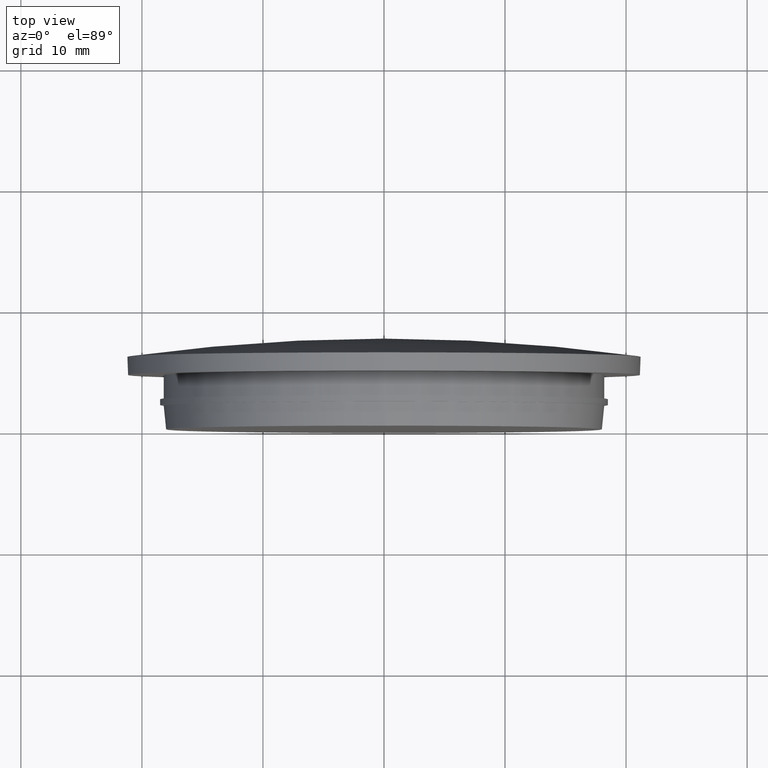
[diagram: clean part render]
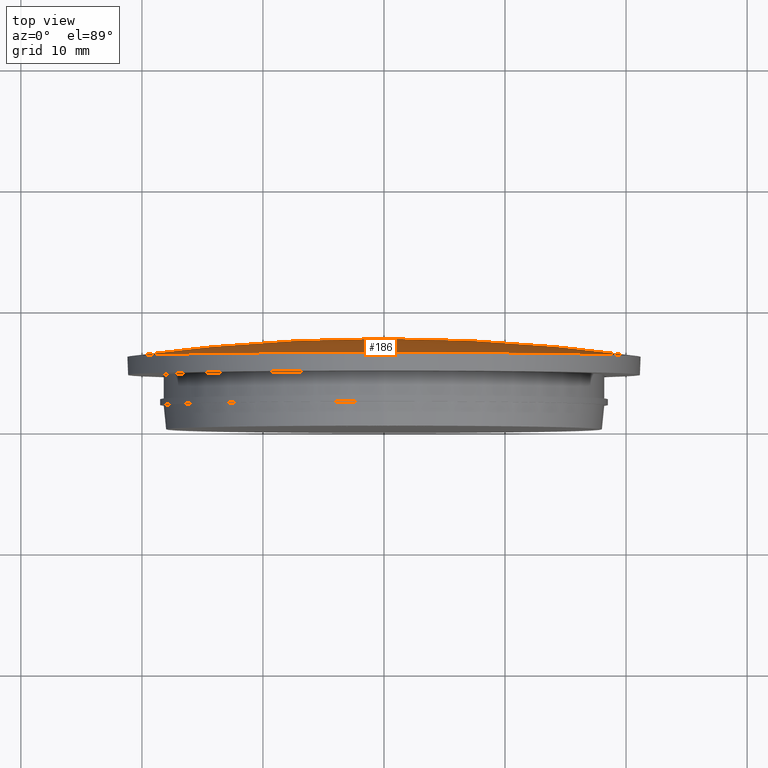
[diagram: same view with one face highlighted and labeled with its STEP entity id]
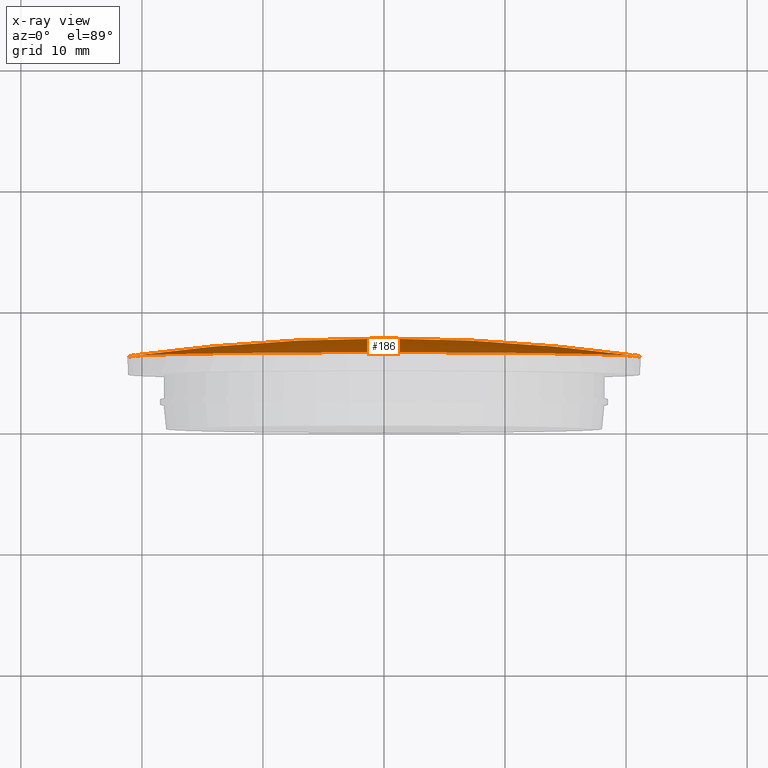
[diagram: x-ray of the same camera — body ghosted, the highlighted face saturated]
A machine part, top view. The second image highlights one B-rep face of the part: STEP entity #186.
The next image is the same camera in x-ray: the body ghosted, the highlighted face saturated — about 0% of this face is hidden behind the body in this view.
In plain terms, the highlighted spherical surface has radius 150.563 mm.
Its self-contained STEP definition (entity closure, byte-faithful):
#186 = ADVANCED_FACE ( 'NONE', ( #9814 ), #11570, .T. ) ;
#716 = CARTESIAN_POINT ( 'NONE',  ( 0.0000000000000000000, -143.0633333333346400, 0.0000000000000000000 ) ) ;
#943 = DIRECTION ( 'NONE',  ( -0.0000000000000000000, 1.000000000000000000, -0.0000000000000000000 ) ) ;
#1498 = EDGE_CURVE ( 'NONE', #2466, #5381, #4298, .T. ) ;
#2466 = VERTEX_POINT ( 'NONE', #13152 ) ;
#2713 = DIRECTION ( 'NONE',  ( -0.0000000000000000000, 1.000000000000000000, -0.0000000000000000000 ) ) ;
#3174 = CARTESIAN_POINT ( 'NONE',  ( 0.0000000000000000000, -143.0633333333346400, 0.0000000000000000000 ) ) ;
#3320 = AXIS2_PLACEMENT_3D ( 'NONE', #5608, #7617, #5509 ) ;
#3871 = CIRCLE ( 'NONE', #10192, 21.19999999999999900 ) ;
#4298 = CIRCLE ( 'NONE', #7902, 150.5633333333346700 ) ;
#4371 = ORIENTED_EDGE ( 'NONE', *, *, #12433, .T. ) ;
#4945 = DIRECTION ( 'NONE',  ( 0.0000000000000000000, 0.0000000000000000000, 1.000000000000000000 ) ) ;
#5074 = DIRECTION ( 'NONE',  ( 1.000000000000000000, 0.0000000000000000000, 0.0000000000000000000 ) ) ;
#5239 = AXIS2_PLACEMENT_3D ( 'NONE', #11982, #2713, #12892 ) ;
#5381 = VERTEX_POINT ( 'NONE', #8735 ) ;
#5509 = DIRECTION ( 'NONE',  ( 1.000000000000000000, 0.0000000000000000000, 0.0000000000000000000 ) ) ;
#5608 = CARTESIAN_POINT ( 'NONE',  ( 0.0000000000000000000, -143.0633333333346400, 0.0000000000000000000 ) ) ;
#5716 = VERTEX_POINT ( 'NONE', #9496 ) ;
#6149 = CARTESIAN_POINT ( 'NONE',  ( 0.0000000000000000000, 6.000000000000003600, 0.0000000000000000000 ) ) ;
#7135 = DIRECTION ( 'NONE',  ( 0.0000000000000000000, 0.0000000000000000000, 1.000000000000000000 ) ) ;
#7351 = CARTESIAN_POINT ( 'NONE',  ( 0.0000000000000000000, 6.000000000000003600, 21.19999999999999900 ) ) ;
#7367 = EDGE_CURVE ( 'NONE', #10778, #5716, #3871, .T. ) ;
#7617 = DIRECTION ( 'NONE',  ( 0.0000000000000000000, 0.0000000000000000000, -1.000000000000000000 ) ) ;
#7823 = CIRCLE ( 'NONE', #12380, 150.5633333333346700 ) ;
#7856 = DIRECTION ( 'NONE',  ( -1.000000000000000000, 0.0000000000000000000, -1.224646799147353000E-016 ) ) ;
#7884 = CIRCLE ( 'NONE', #5239, 21.19999999999999900 ) ;
#7902 = AXIS2_PLACEMENT_3D ( 'NONE', #716, #8785, #7856 ) ;
#8447 = EDGE_CURVE ( 'NONE', #5716, #5381, #7823, .T. ) ;
#8735 = CARTESIAN_POINT ( 'NONE',  ( 9.219345211781213500E-015, 7.500000000000007100, 0.0000000000000000000 ) ) ;
#8785 = DIRECTION ( 'NONE',  ( 1.224646799147353200E-016, 0.0000000000000000000, -1.000000000000000000 ) ) ;
#9496 = CARTESIAN_POINT ( 'NONE',  ( 21.20000000000003100, 6.000000000000004400, 0.0000000000000000000 ) ) ;
#9814 = FACE_OUTER_BOUND ( 'NONE', #13183, .T. ) ;
#10192 = AXIS2_PLACEMENT_3D ( 'NONE', #6149, #943, #4945 ) ;
#10778 = VERTEX_POINT ( 'NONE', #7351 ) ;
#11513 = ORIENTED_EDGE ( 'NONE', *, *, #1498, .F. ) ;
#11570 = SPHERICAL_SURFACE ( 'NONE', #3320, 150.5633333333346700 ) ;
#11773 = ORIENTED_EDGE ( 'NONE', *, *, #8447, .T. ) ;
#11982 = CARTESIAN_POINT ( 'NONE',  ( 0.0000000000000000000, 6.000000000000003600, 0.0000000000000000000 ) ) ;
#12380 = AXIS2_PLACEMENT_3D ( 'NONE', #3174, #7135, #5074 ) ;
#12433 = EDGE_CURVE ( 'NONE', #2466, #10778, #7884, .T. ) ;
#12501 = ORIENTED_EDGE ( 'NONE', *, *, #7367, .T. ) ;
#12892 = DIRECTION ( 'NONE',  ( 0.0000000000000000000, 0.0000000000000000000, 1.000000000000000000 ) ) ;
#13152 = CARTESIAN_POINT ( 'NONE',  ( -21.20000000000003100, 6.000000000000004400, -2.596251214192392700E-015 ) ) ;
#13183 = EDGE_LOOP ( 'NONE', ( #11513, #4371, #12501, #11773 ) ) ;